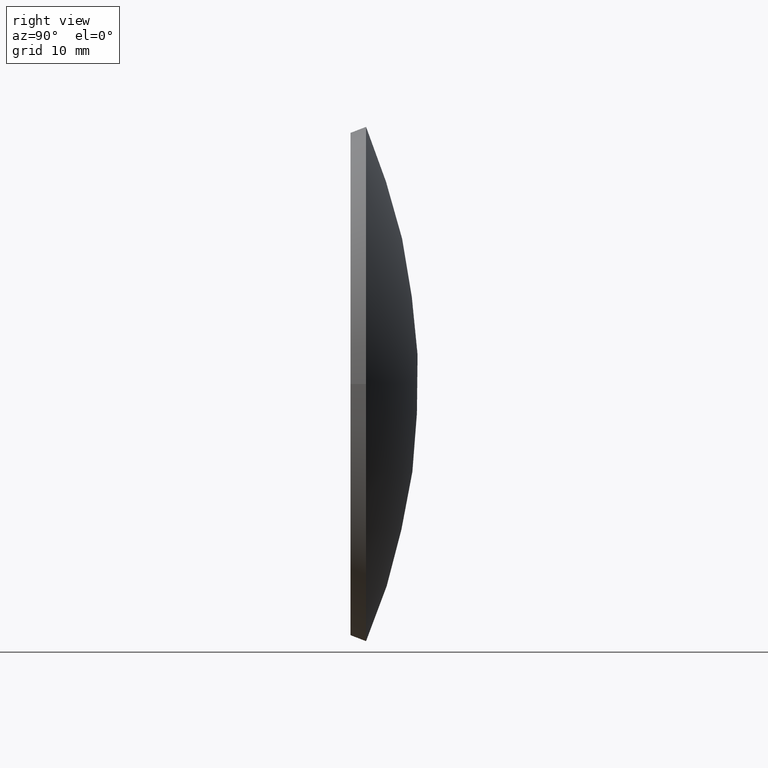
[diagram: clean part render]
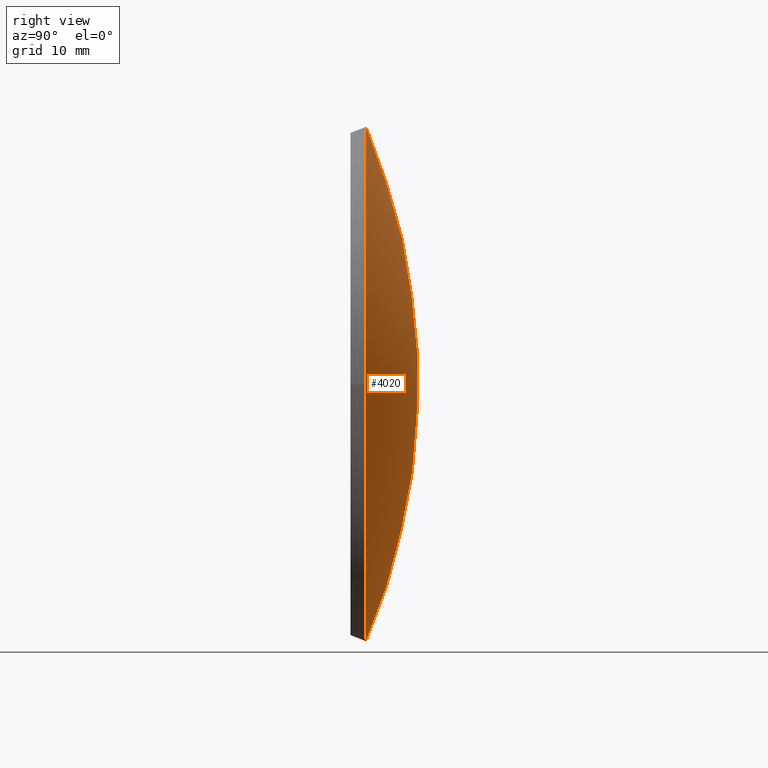
[diagram: same view with one face highlighted and labeled with its STEP entity id]
A machine part, right view. The second image highlights one B-rep face of the part: STEP entity #4020.
In plain terms, the highlighted spherical surface has radius 97.9038 mm.
Its self-contained STEP definition (entity closure, byte-faithful):
#565 = EDGE_LOOP ( 'NONE', ( #6178 ) ) ;
#867 = FACE_OUTER_BOUND ( 'NONE', #565, .T. ) ;
#921 = CIRCLE ( 'NONE', #9112, 38.04999999999998295 ) ;
#2122 = SPHERICAL_SURFACE ( 'NONE', #8419, 97.90376376918035817 ) ;
#2340 = CARTESIAN_POINT ( 'NONE',  ( 38.04999999999999716, 2.303466873221362565, 0.000000000000000000 ) ) ;
#2916 = VERTEX_POINT ( 'NONE', #2340 ) ;
#3038 = DIRECTION ( 'NONE',  ( 0.000000000000000000, -0.000000000000000000, 1.000000000000000000 ) ) ;
#3492 = DIRECTION ( 'NONE',  ( 1.000000000000000000, 2.336519793529866184E-15, 0.000000000000000000 ) ) ;
#4020 = ADVANCED_FACE ( 'NONE', ( #867 ), #2122, .T. ) ;
#6178 = ORIENTED_EDGE ( 'NONE', *, *, #9703, .F. ) ;
#6579 = DIRECTION ( 'NONE',  ( 1.000000000000000000, 2.267988444739750728E-15, 0.000000000000000000 ) ) ;
#8419 = AXIS2_PLACEMENT_3D ( 'NONE', #9353, #3038, #6579 ) ;
#9112 = AXIS2_PLACEMENT_3D ( 'NONE', #10688, #10820, #3492 ) ;
#9353 = CARTESIAN_POINT ( 'NONE',  ( 3.149280645062008067E-27, -87.90376376918041501, 0.000000000000000000 ) ) ;
#9703 = EDGE_CURVE ( 'NONE', #2916, #2916, #921, .T. ) ;
#10688 = CARTESIAN_POINT ( 'NONE',  ( 1.798462963866461211E-14, 2.303466873221273747, 0.000000000000000000 ) ) ;
#10820 = DIRECTION ( 'NONE',  ( 2.336718278530774715E-15, -1.000000000000000000, -0.000000000000000000 ) ) ;